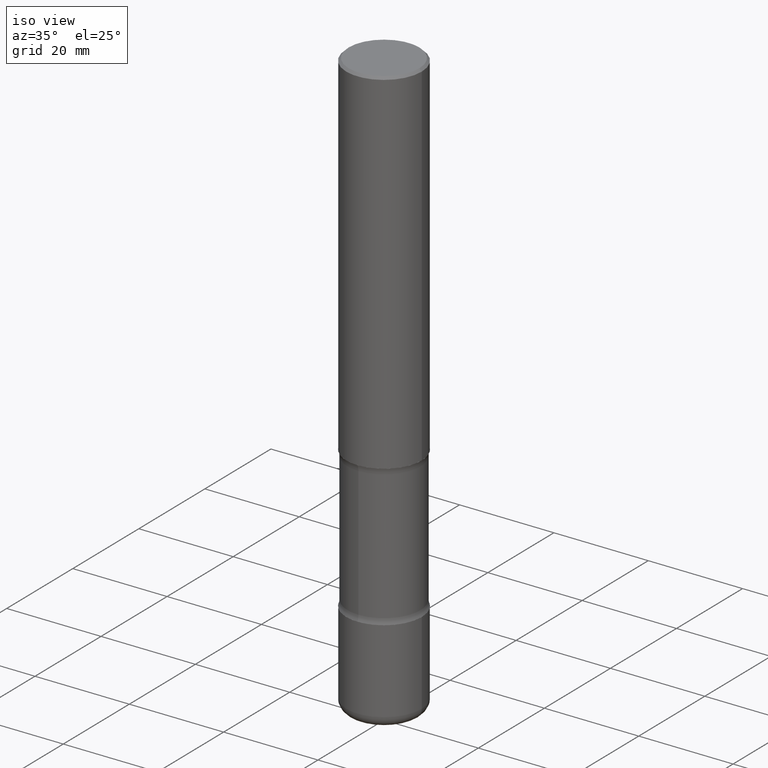
[diagram: clean part render]
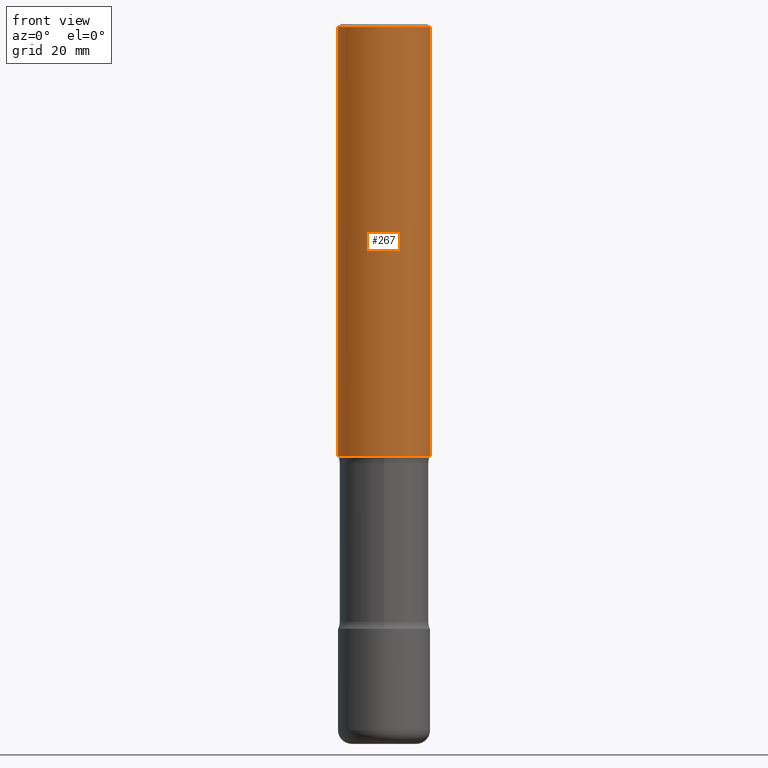
[diagram: tour spotlight — one face highlighted and labeled with its STEP entity id]
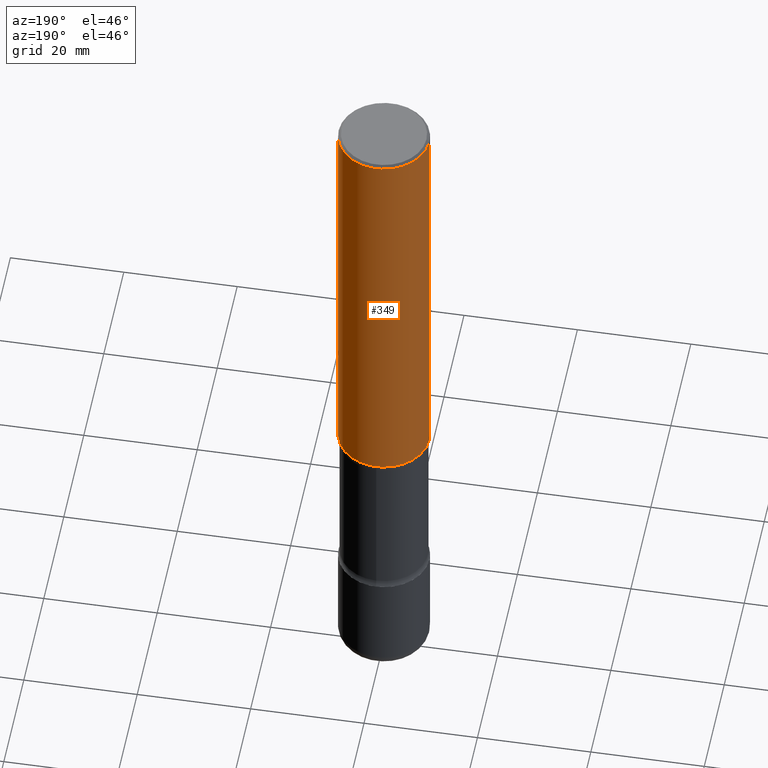
[diagram: tour spotlight — one face highlighted and labeled with its STEP entity id]
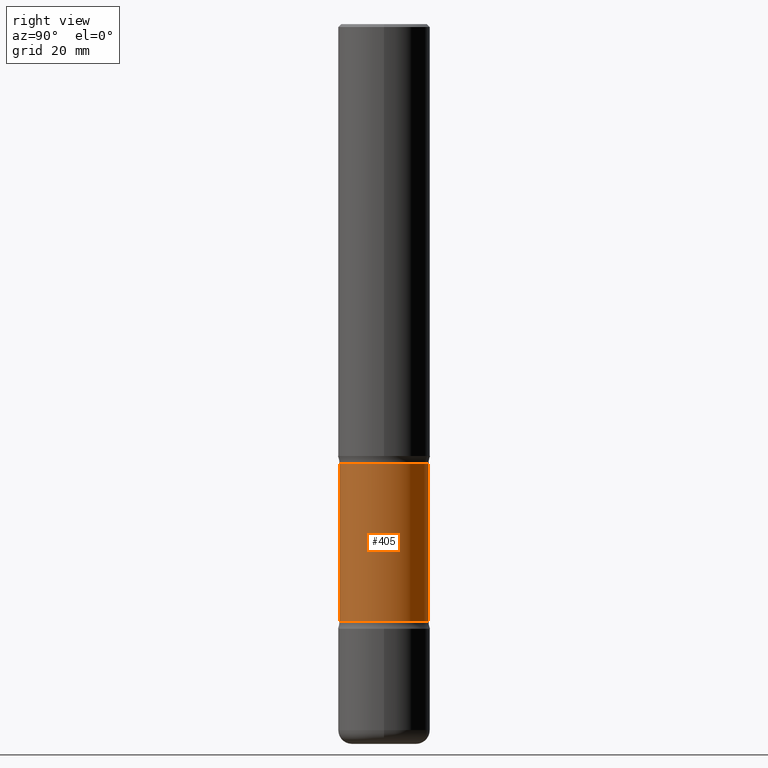
[diagram: tour spotlight — one face highlighted and labeled with its STEP entity id]
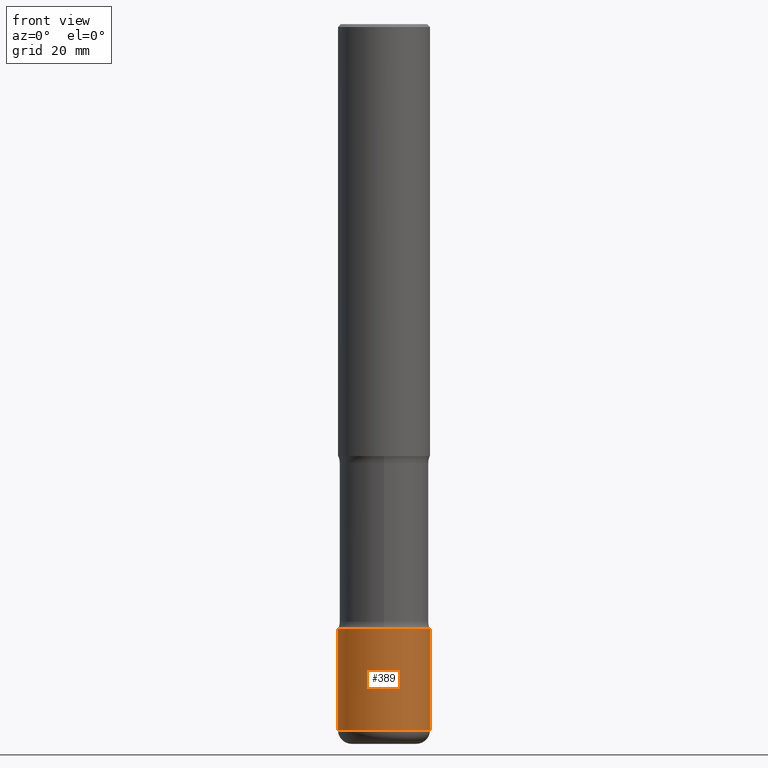
[diagram: tour spotlight — one face highlighted and labeled with its STEP entity id]
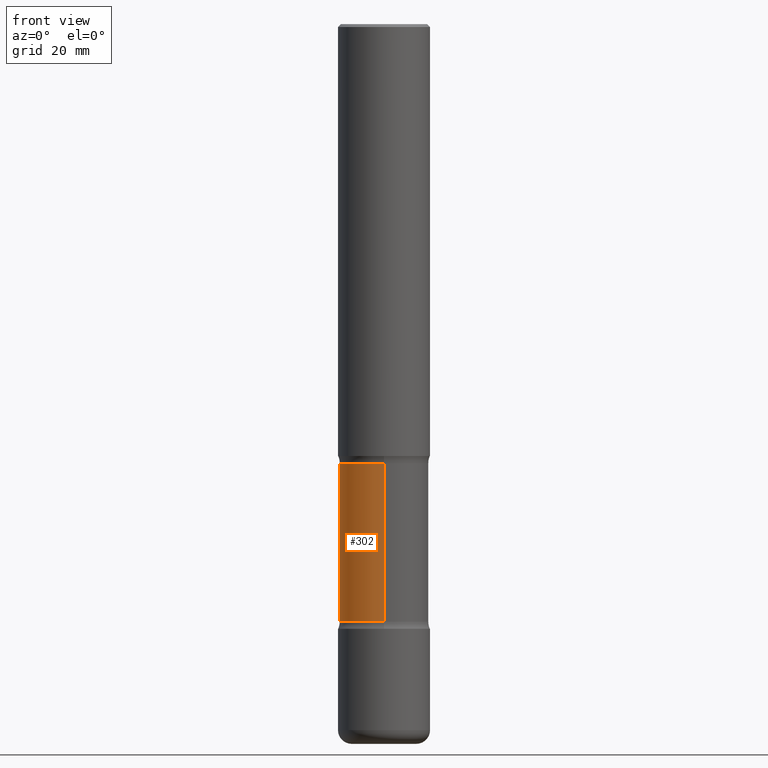
[diagram: tour spotlight — one face highlighted and labeled with its STEP entity id]
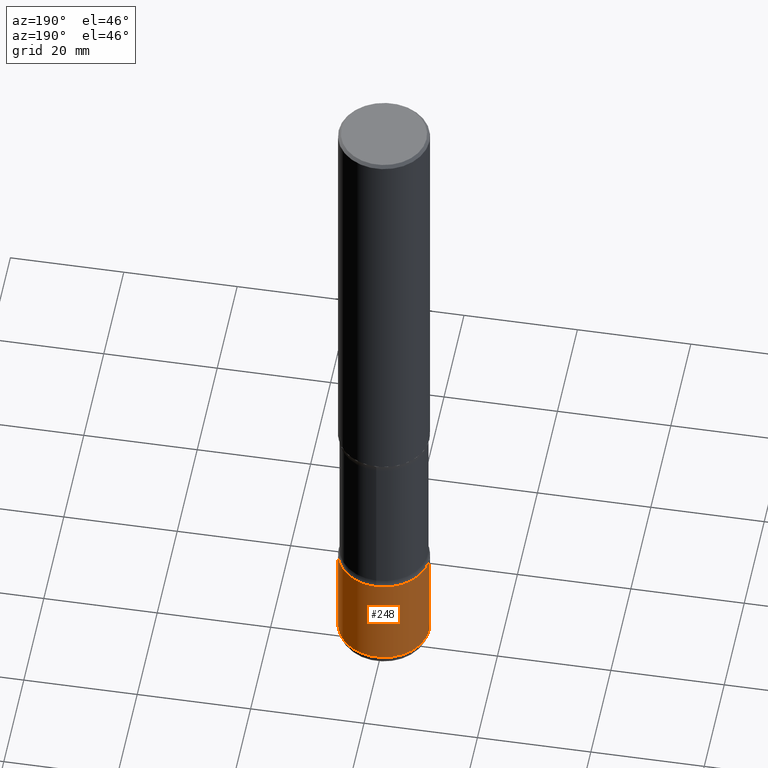
[diagram: tour spotlight — one face highlighted and labeled with its STEP entity id]
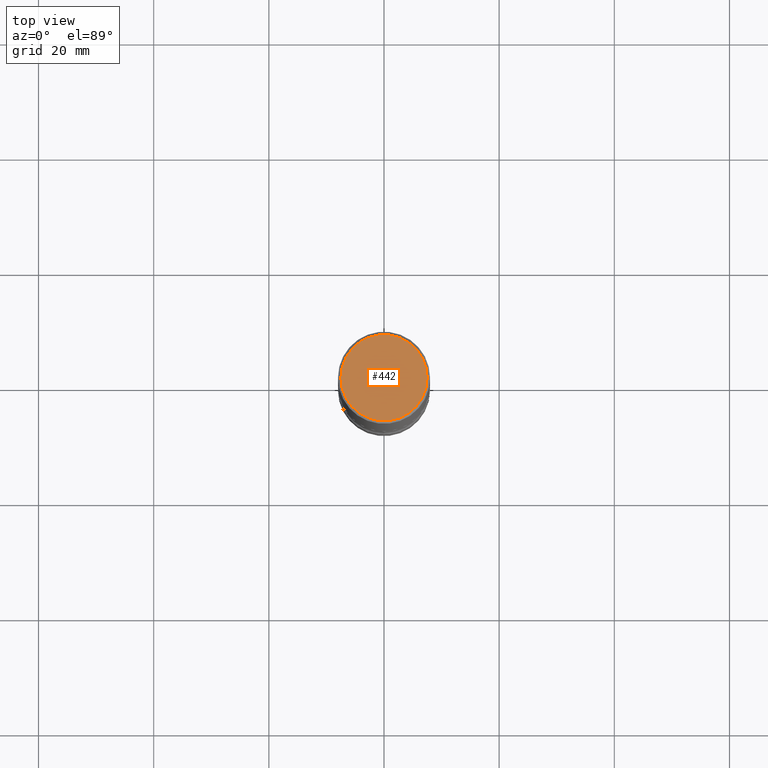
[diagram: tour spotlight — one face highlighted and labeled with its STEP entity id]
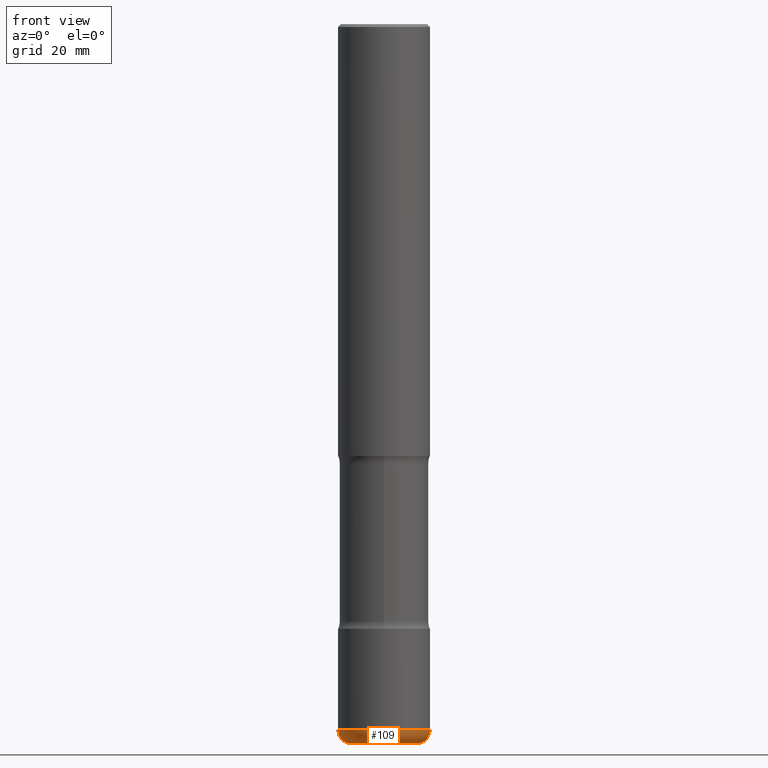
[diagram: tour spotlight — one face highlighted and labeled with its STEP entity id]
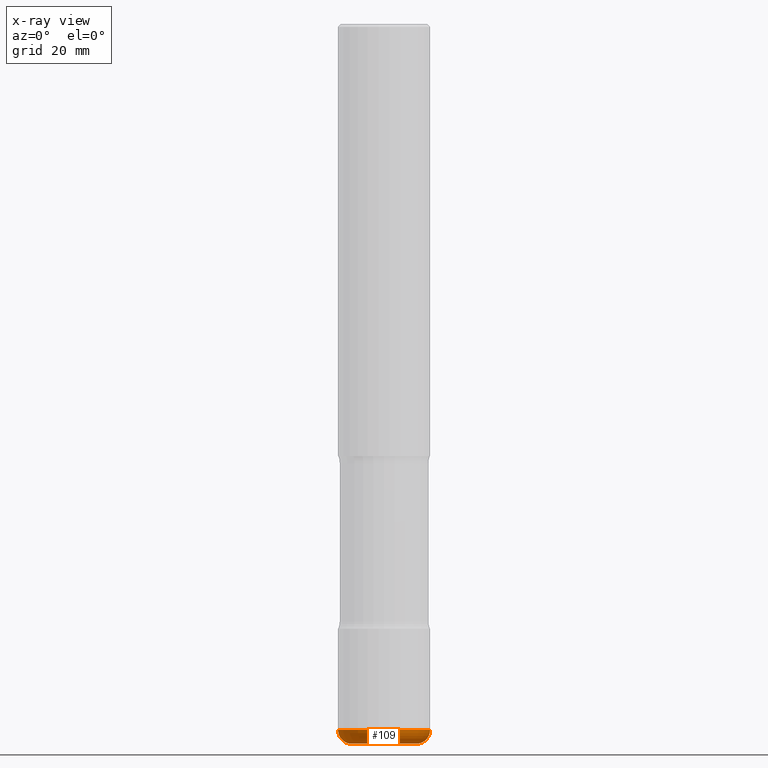
[diagram: x-ray of the same camera — body ghosted, this tour face saturated]
A machine part: a face-by-face anatomy tour. The part has 20 B-rep faces; the first image is the clean iso view, then the 8 largest visible faces are spotlighted one at a time (largest first), each with its STEP entity span.

Face 1 — front view, entity #267. In plain terms, the highlighted cylindrical surface (partial cylindrical patch) has radius 7.9997 mm, axis along (-0, 0, 1).
Definition (entity closure, byte-faithful):
#15 = FACE_OUTER_BOUND ( 'NONE', #491, .T. ) ;
#16 = ORIENTED_EDGE ( 'NONE', *, *, #226, .T. ) ;
#64 = EDGE_CURVE ( 'NONE', #408, #262, #70, .T. ) ;
#70 = LINE ( 'NONE', #508, #477 ) ;
#81 = CARTESIAN_POINT ( 'NONE',  ( 0.3149500000000002298, -1.250893019267332998E-14, -2.952799999999999869 ) ) ;
#83 = EDGE_CURVE ( 'NONE', #365, #395, #552, .T. ) ;
#101 = DIRECTION ( 'NONE',  ( 1.000000000000000000, -6.982962677686266711E-15, 4.876176775795936353E-29 ) ) ;
#116 = CARTESIAN_POINT ( 'NONE',  ( 7.220980290903470182E-29, -1.030964609733603853E-14, -2.952799999999999869 ) ) ;
#143 = CARTESIAN_POINT ( 'NONE',  ( -0.3149499999999998967, 2.129454468560425784E-15, -0.02000000000000006981 ) ) ;
#162 = CARTESIAN_POINT ( 'NONE',  ( 0.3149500000000000077, -2.199284095337289871E-15, 1.535751875536930130E-29 ) ) ;
#189 = EDGE_CURVE ( 'NONE', #262, #395, #485, .T. ) ;
#197 = ORIENTED_EDGE ( 'NONE', *, *, #64, .F. ) ;
#225 = AXIS2_PLACEMENT_3D ( 'NONE', #451, #444, #101 ) ;
#226 = EDGE_CURVE ( 'NONE', #408, #365, #393, .T. ) ;
#239 = AXIS2_PLACEMENT_3D ( 'NONE', #463, #499, #341 ) ;
#262 = VERTEX_POINT ( 'NONE', #143 ) ;
#267 = ADVANCED_FACE ( 'NONE', ( #15 ), #360, .T. ) ;
#290 = DIRECTION ( 'NONE',  ( -2.445468806185136877E-29, 3.491481338843145188E-15, 1.000000000000000000 ) ) ;
#292 = DIRECTION ( 'NONE',  ( -2.445468806185136597E-29, 3.491481338843145583E-15, 1.000000000000000000 ) ) ;
#313 = AXIS2_PLACEMENT_3D ( 'NONE', #116, #292, #333 ) ;
#320 = DIRECTION ( 'NONE',  ( -2.445468806185136877E-29, 3.491481338843145188E-15, 1.000000000000000000 ) ) ;
#333 = DIRECTION ( 'NONE',  ( 1.000000000000000000, -6.982962677686264344E-15, 0.000000000000000000 ) ) ;
#341 = DIRECTION ( 'NONE',  ( 1.000000000000000000, -6.982962677686265922E-15, 0.000000000000000000 ) ) ;
#360 = CYLINDRICAL_SURFACE ( 'NONE', #225, 0.3149500000000000077 ) ;
#365 = VERTEX_POINT ( 'NONE', #81 ) ;
#393 = CIRCLE ( 'NONE', #313, 0.3149500000000002298 ) ;
#394 = CARTESIAN_POINT ( 'NONE',  ( -0.3149500000000002298, -2.951883515780010590E-15, -2.952799999999999869 ) ) ;
#395 = VERTEX_POINT ( 'NONE', #478 ) ;
#408 = VERTEX_POINT ( 'NONE', #394 ) ;
#436 = ORIENTED_EDGE ( 'NONE', *, *, #189, .F. ) ;
#444 = DIRECTION ( 'NONE',  ( -2.445468806185136597E-29, 3.491481338843145583E-15, 1.000000000000000000 ) ) ;
#451 = CARTESIAN_POINT ( 'NONE',  ( 0.000000000000000000, 0.000000000000000000, 0.000000000000000000 ) ) ;
#463 = CARTESIAN_POINT ( 'NONE',  ( 4.890937612370289799E-31, -6.982962677686315028E-17, -0.02000000000000006981 ) ) ;
#477 = VECTOR ( 'NONE', #290, 39.37007874015748143 ) ;
#478 = CARTESIAN_POINT ( 'NONE',  ( 0.3149499999999998967, -2.230543471175006266E-15, -0.02000000000000006981 ) ) ;
#485 = CIRCLE ( 'NONE', #239, 0.3149499999999998967 ) ;
#491 = EDGE_LOOP ( 'NONE', ( #197, #16, #493, #436 ) ) ;
#493 = ORIENTED_EDGE ( 'NONE', *, *, #83, .T. ) ;
#499 = DIRECTION ( 'NONE',  ( -2.445468806185136597E-29, 3.491481338843145583E-15, 1.000000000000000000 ) ) ;
#508 = CARTESIAN_POINT ( 'NONE',  ( -0.3149500000000000077, 2.237854346276435590E-15, -1.549218606675782676E-29 ) ) ;
#545 = VECTOR ( 'NONE', #320, 39.37007874015748143 ) ;
#552 = LINE ( 'NONE', #162, #545 ) ;

Face 2 — auxiliary view, entity #349. In plain terms, the highlighted cylindrical surface (partial cylindrical patch) has radius 7.9997 mm, axis along (-0, 0, 1).
Definition (entity closure, byte-faithful):
#4 = CARTESIAN_POINT ( 'NONE',  ( 7.220980290903470182E-29, -1.030964609733603853E-14, -2.952799999999999869 ) ) ;
#33 = CYLINDRICAL_SURFACE ( 'NONE', #455, 0.3149500000000000077 ) ;
#42 = DIRECTION ( 'NONE',  ( 1.000000000000000000, -6.982962677686265922E-15, 0.000000000000000000 ) ) ;
#64 = EDGE_CURVE ( 'NONE', #408, #262, #70, .T. ) ;
#65 = ORIENTED_EDGE ( 'NONE', *, *, #64, .T. ) ;
#70 = LINE ( 'NONE', #508, #477 ) ;
#81 = CARTESIAN_POINT ( 'NONE',  ( 0.3149500000000002298, -1.250893019267332998E-14, -2.952799999999999869 ) ) ;
#83 = EDGE_CURVE ( 'NONE', #365, #395, #552, .T. ) ;
#106 = CIRCLE ( 'NONE', #476, 0.3149500000000002298 ) ;
#124 = EDGE_CURVE ( 'NONE', #395, #262, #402, .T. ) ;
#143 = CARTESIAN_POINT ( 'NONE',  ( -0.3149499999999998967, 2.129454468560425784E-15, -0.02000000000000006981 ) ) ;
#154 = DIRECTION ( 'NONE',  ( -2.445468806185136597E-29, 3.491481338843145583E-15, 1.000000000000000000 ) ) ;
#162 = CARTESIAN_POINT ( 'NONE',  ( 0.3149500000000000077, -2.199284095337289871E-15, 1.535751875536930130E-29 ) ) ;
#195 = CARTESIAN_POINT ( 'NONE',  ( 4.890937612370289799E-31, -6.982962677686315028E-17, -0.02000000000000006981 ) ) ;
#234 = ORIENTED_EDGE ( 'NONE', *, *, #83, .F. ) ;
#262 = VERTEX_POINT ( 'NONE', #143 ) ;
#290 = DIRECTION ( 'NONE',  ( -2.445468806185136877E-29, 3.491481338843145188E-15, 1.000000000000000000 ) ) ;
#295 = DIRECTION ( 'NONE',  ( -2.445468806185136597E-29, 3.491481338843145583E-15, 1.000000000000000000 ) ) ;
#303 = DIRECTION ( 'NONE',  ( -2.445468806185136597E-29, 3.491481338843145583E-15, 1.000000000000000000 ) ) ;
#320 = DIRECTION ( 'NONE',  ( -2.445468806185136877E-29, 3.491481338843145188E-15, 1.000000000000000000 ) ) ;
#325 = ORIENTED_EDGE ( 'NONE', *, *, #537, .T. ) ;
#331 = FACE_OUTER_BOUND ( 'NONE', #523, .T. ) ;
#349 = ADVANCED_FACE ( 'NONE', ( #331 ), #33, .T. ) ;
#352 = ORIENTED_EDGE ( 'NONE', *, *, #124, .F. ) ;
#365 = VERTEX_POINT ( 'NONE', #81 ) ;
#394 = CARTESIAN_POINT ( 'NONE',  ( -0.3149500000000002298, -2.951883515780010590E-15, -2.952799999999999869 ) ) ;
#395 = VERTEX_POINT ( 'NONE', #478 ) ;
#402 = CIRCLE ( 'NONE', #517, 0.3149499999999998967 ) ;
#408 = VERTEX_POINT ( 'NONE', #394 ) ;
#455 = AXIS2_PLACEMENT_3D ( 'NONE', #458, #295, #505 ) ;
#458 = CARTESIAN_POINT ( 'NONE',  ( 0.000000000000000000, 0.000000000000000000, 0.000000000000000000 ) ) ;
#473 = DIRECTION ( 'NONE',  ( 1.000000000000000000, -6.982962677686264344E-15, 0.000000000000000000 ) ) ;
#476 = AXIS2_PLACEMENT_3D ( 'NONE', #4, #303, #473 ) ;
#477 = VECTOR ( 'NONE', #290, 39.37007874015748143 ) ;
#478 = CARTESIAN_POINT ( 'NONE',  ( 0.3149499999999998967, -2.230543471175006266E-15, -0.02000000000000006981 ) ) ;
#505 = DIRECTION ( 'NONE',  ( 1.000000000000000000, -6.982962677686266711E-15, 4.876176775795936353E-29 ) ) ;
#508 = CARTESIAN_POINT ( 'NONE',  ( -0.3149500000000000077, 2.237854346276435590E-15, -1.549218606675782676E-29 ) ) ;
#517 = AXIS2_PLACEMENT_3D ( 'NONE', #195, #154, #42 ) ;
#523 = EDGE_LOOP ( 'NONE', ( #325, #65, #352, #234 ) ) ;
#537 = EDGE_CURVE ( 'NONE', #365, #408, #106, .T. ) ;
#545 = VECTOR ( 'NONE', #320, 39.37007874015748143 ) ;
#552 = LINE ( 'NONE', #162, #545 ) ;

Face 3 — right view, entity #405. In plain terms, the highlighted cylindrical surface (partial cylindrical patch) has radius 7.747 mm, axis along (0, -0, -1).
Definition (entity closure, byte-faithful):
#24 = VERTEX_POINT ( 'NONE', #459 ) ;
#49 = AXIS2_PLACEMENT_3D ( 'NONE', #364, #103, #138 ) ;
#86 = AXIS2_PLACEMENT_3D ( 'NONE', #482, #437, #559 ) ;
#88 = DIRECTION ( 'NONE',  ( 6.982962677686266711E-15, 1.000000000000000000, -3.582751467100673306E-15 ) ) ;
#103 = DIRECTION ( 'NONE',  ( 2.567425907890858451E-29, -3.316831827833398617E-15, -1.000000000000000000 ) ) ;
#126 = ORIENTED_EDGE ( 'NONE', *, *, #510, .T. ) ;
#138 = DIRECTION ( 'NONE',  ( 6.982962677686265133E-15, 1.000000000000000000, -3.582751467100671728E-15 ) ) ;
#141 = VERTEX_POINT ( 'NONE', #252 ) ;
#157 = CARTESIAN_POINT ( 'NONE',  ( -2.092451889320195532E-15, -0.3050000000000170908, -4.921299999999997787 ) ) ;
#179 = ORIENTED_EDGE ( 'NONE', *, *, #286, .T. ) ;
#182 = EDGE_CURVE ( 'NONE', #450, #141, #420, .T. ) ;
#210 = DIRECTION ( 'NONE',  ( 2.567425907890858451E-29, -3.316831827833398617E-15, -1.000000000000000000 ) ) ;
#217 = DIRECTION ( 'NONE',  ( 2.567425907890858451E-29, -3.316831827833398617E-15, -1.000000000000000000 ) ) ;
#224 = CARTESIAN_POINT ( 'NONE',  ( -2.126582866859160770E-15, -0.3050000000000108180, -3.001672256956272378 ) ) ;
#252 = CARTESIAN_POINT ( 'NONE',  ( 2.129803616694410664E-15, 0.3049999999999857270, -4.085027743043728066 ) ) ;
#261 = CARTESIAN_POINT ( 'NONE',  ( 9.983847599202101310E-29, -1.427133364927305841E-14, -4.085027743043726289 ) ) ;
#286 = EDGE_CURVE ( 'NONE', #450, #406, #526, .T. ) ;
#299 = DIRECTION ( 'NONE',  ( 2.567425907890858451E-29, -3.316831827833398617E-15, -1.000000000000000000 ) ) ;
#310 = CYLINDRICAL_SURFACE ( 'NONE', #86, 0.3050000000000000488 ) ;
#312 = CIRCLE ( 'NONE', #534, 0.3049999999999999933 ) ;
#323 = EDGE_LOOP ( 'NONE', ( #179, #126, #342, #350 ) ) ;
#338 = CARTESIAN_POINT ( 'NONE',  ( 2.129803616694383843E-15, 0.3049999999999893907, -3.001672256956274598 ) ) ;
#342 = ORIENTED_EDGE ( 'NONE', *, *, #424, .F. ) ;
#350 = ORIENTED_EDGE ( 'NONE', *, *, #182, .F. ) ;
#364 = CARTESIAN_POINT ( 'NONE',  ( 7.202412656765479231E-29, -1.067802569216027239E-14, -3.001672256956273710 ) ) ;
#388 = FACE_OUTER_BOUND ( 'NONE', #323, .T. ) ;
#405 = ADVANCED_FACE ( 'NONE', ( #388 ), #310, .T. ) ;
#406 = VERTEX_POINT ( 'NONE', #224 ) ;
#411 = VECTOR ( 'NONE', #299, 39.37007874015748143 ) ;
#420 = LINE ( 'NONE', #426, #503 ) ;
#424 = EDGE_CURVE ( 'NONE', #141, #24, #312, .T. ) ;
#426 = CARTESIAN_POINT ( 'NONE',  ( 2.129803616694432752E-15, 0.3049999999999830069, -4.921299999999999564 ) ) ;
#437 = DIRECTION ( 'NONE',  ( 2.567425907890858451E-29, -3.316831827833398617E-15, -1.000000000000000000 ) ) ;
#450 = VERTEX_POINT ( 'NONE', #338 ) ;
#459 = CARTESIAN_POINT ( 'NONE',  ( -2.126582866859130004E-15, -0.3050000000000142597, -4.085027743043725401 ) ) ;
#482 = CARTESIAN_POINT ( 'NONE',  ( 1.213091465776199422E-28, -1.704510808787969270E-14, -4.921299999999998676 ) ) ;
#503 = VECTOR ( 'NONE', #210, 39.37007874015748143 ) ;
#510 = EDGE_CURVE ( 'NONE', #406, #24, #547, .T. ) ;
#526 = CIRCLE ( 'NONE', #49, 0.3050000000000001044 ) ;
#534 = AXIS2_PLACEMENT_3D ( 'NONE', #261, #217, #88 ) ;
#547 = LINE ( 'NONE', #157, #411 ) ;
#559 = DIRECTION ( 'NONE',  ( 6.982962677686265133E-15, 1.000000000000000000, -3.582751467100672517E-15 ) ) ;

Face 4 — front view, entity #389. In plain terms, the highlighted cylindrical surface (partial cylindrical patch) has radius 7.9997 mm, axis along (-0, 0, 1).
Definition (entity closure, byte-faithful):
#5 = EDGE_CURVE ( 'NONE', #423, #129, #125, .T. ) ;
#17 = VERTEX_POINT ( 'NONE', #243 ) ;
#43 = LINE ( 'NONE', #220, #291 ) ;
#48 = ORIENTED_EDGE ( 'NONE', *, *, #466, .T. ) ;
#50 = DIRECTION ( 'NONE',  ( -2.445468806185136597E-29, 3.491481338843145583E-15, 1.000000000000000000 ) ) ;
#58 = ORIENTED_EDGE ( 'NONE', *, *, #492, .T. ) ;
#77 = CARTESIAN_POINT ( 'NONE',  ( 0.3149500000000001743, -1.663271880198097216E-14, -4.133899999999999686 ) ) ;
#85 = CARTESIAN_POINT ( 'NONE',  ( 0.3149500000000001743, -1.905196622166539041E-14, -4.826800000000001312 ) ) ;
#98 = ORIENTED_EDGE ( 'NONE', *, *, #5, .F. ) ;
#110 = AXIS2_PLACEMENT_3D ( 'NONE', #167, #464, #422 ) ;
#117 = CIRCLE ( 'NONE', #428, 0.3149500000000001743 ) ;
#125 = CIRCLE ( 'NONE', #110, 0.3149500000000001743 ) ;
#127 = DIRECTION ( 'NONE',  ( -2.445468806185136877E-29, 3.491481338843145188E-15, 1.000000000000000000 ) ) ;
#128 = CARTESIAN_POINT ( 'NONE',  ( -0.3149500000000001743, -1.340520407020945227E-14, -4.133899999999999686 ) ) ;
#129 = VERTEX_POINT ( 'NONE', #77 ) ;
#132 = VECTOR ( 'NONE', #127, 39.37007874015748143 ) ;
#167 = CARTESIAN_POINT ( 'NONE',  ( 1.010932349788873450E-28, -1.443343470664368071E-14, -4.133899999999999686 ) ) ;
#220 = CARTESIAN_POINT ( 'NONE',  ( 0.3149500000000001743, -2.199284095337290660E-15, 1.535751875536930690E-29 ) ) ;
#243 = CARTESIAN_POINT ( 'NONE',  ( -0.3149500000000001743, -1.461482778005166298E-14, -4.826800000000001312 ) ) ;
#255 = FACE_OUTER_BOUND ( 'NONE', #400, .T. ) ;
#291 = VECTOR ( 'NONE', #427, 39.37007874015748143 ) ;
#298 = ORIENTED_EDGE ( 'NONE', *, *, #373, .F. ) ;
#307 = DIRECTION ( 'NONE',  ( 1.000000000000000000, -6.982962677686265922E-15, 0.000000000000000000 ) ) ;
#348 = CARTESIAN_POINT ( 'NONE',  ( 0.000000000000000000, 0.000000000000000000, 0.000000000000000000 ) ) ;
#373 = EDGE_CURVE ( 'NONE', #17, #423, #381, .T. ) ;
#381 = LINE ( 'NONE', #386, #132 ) ;
#384 = AXIS2_PLACEMENT_3D ( 'NONE', #348, #50, #431 ) ;
#386 = CARTESIAN_POINT ( 'NONE',  ( -0.3149500000000001743, 2.237854346276436774E-15, -1.549218606675783237E-29 ) ) ;
#387 = DIRECTION ( 'NONE',  ( -2.445468806185136597E-29, 3.491481338843145583E-15, 1.000000000000000000 ) ) ;
#389 = ADVANCED_FACE ( 'NONE', ( #255 ), #425, .T. ) ;
#400 = EDGE_LOOP ( 'NONE', ( #298, #58, #48, #98 ) ) ;
#422 = DIRECTION ( 'NONE',  ( 1.000000000000000000, -6.982962677686265922E-15, 0.000000000000000000 ) ) ;
#423 = VERTEX_POINT ( 'NONE', #128 ) ;
#425 = CYLINDRICAL_SURFACE ( 'NONE', #384, 0.3149500000000001743 ) ;
#427 = DIRECTION ( 'NONE',  ( -2.445468806185136877E-29, 3.491481338843145188E-15, 1.000000000000000000 ) ) ;
#428 = AXIS2_PLACEMENT_3D ( 'NONE', #429, #387, #307 ) ;
#429 = CARTESIAN_POINT ( 'NONE',  ( 1.180378883369442130E-28, -1.685268212632809896E-14, -4.826800000000001312 ) ) ;
#431 = DIRECTION ( 'NONE',  ( 1.000000000000000000, -6.982962677686265922E-15, 4.876176775795935232E-29 ) ) ;
#464 = DIRECTION ( 'NONE',  ( -2.445468806185136597E-29, 3.491481338843145583E-15, 1.000000000000000000 ) ) ;
#466 = EDGE_CURVE ( 'NONE', #556, #129, #43, .T. ) ;
#492 = EDGE_CURVE ( 'NONE', #17, #556, #117, .T. ) ;
#556 = VERTEX_POINT ( 'NONE', #85 ) ;

Face 5 — front view, entity #302. In plain terms, the highlighted cylindrical surface (partial cylindrical patch) has radius 7.747 mm, axis along (0, -0, -1).
Definition (entity closure, byte-faithful):
#21 = CARTESIAN_POINT ( 'NONE',  ( 1.213091465776199422E-28, -1.704510808787969270E-14, -4.921299999999998676 ) ) ;
#24 = VERTEX_POINT ( 'NONE', #459 ) ;
#31 = CARTESIAN_POINT ( 'NONE',  ( 7.202412656765479231E-29, -1.067802569216027239E-14, -3.001672256956273710 ) ) ;
#92 = ORIENTED_EDGE ( 'NONE', *, *, #510, .F. ) ;
#94 = EDGE_CURVE ( 'NONE', #406, #450, #368, .T. ) ;
#119 = AXIS2_PLACEMENT_3D ( 'NONE', #31, #250, #246 ) ;
#137 = AXIS2_PLACEMENT_3D ( 'NONE', #235, #419, #507 ) ;
#141 = VERTEX_POINT ( 'NONE', #252 ) ;
#157 = CARTESIAN_POINT ( 'NONE',  ( -2.092451889320195532E-15, -0.3050000000000170908, -4.921299999999997787 ) ) ;
#165 = CIRCLE ( 'NONE', #137, 0.3049999999999999933 ) ;
#182 = EDGE_CURVE ( 'NONE', #450, #141, #420, .T. ) ;
#194 = CYLINDRICAL_SURFACE ( 'NONE', #409, 0.3050000000000000488 ) ;
#210 = DIRECTION ( 'NONE',  ( 2.567425907890858451E-29, -3.316831827833398617E-15, -1.000000000000000000 ) ) ;
#224 = CARTESIAN_POINT ( 'NONE',  ( -2.126582866859160770E-15, -0.3050000000000108180, -3.001672256956272378 ) ) ;
#235 = CARTESIAN_POINT ( 'NONE',  ( 9.983847599202101310E-29, -1.427133364927305841E-14, -4.085027743043726289 ) ) ;
#245 = DIRECTION ( 'NONE',  ( 6.982962677686265133E-15, 1.000000000000000000, -3.582751467100672517E-15 ) ) ;
#246 = DIRECTION ( 'NONE',  ( 6.982962677686265133E-15, 1.000000000000000000, -3.582751467100671728E-15 ) ) ;
#250 = DIRECTION ( 'NONE',  ( 2.567425907890858451E-29, -3.316831827833398617E-15, -1.000000000000000000 ) ) ;
#252 = CARTESIAN_POINT ( 'NONE',  ( 2.129803616694410664E-15, 0.3049999999999857270, -4.085027743043728066 ) ) ;
#279 = EDGE_LOOP ( 'NONE', ( #92, #334, #371, #533 ) ) ;
#296 = EDGE_CURVE ( 'NONE', #24, #141, #165, .T. ) ;
#299 = DIRECTION ( 'NONE',  ( 2.567425907890858451E-29, -3.316831827833398617E-15, -1.000000000000000000 ) ) ;
#302 = ADVANCED_FACE ( 'NONE', ( #412 ), #194, .T. ) ;
#334 = ORIENTED_EDGE ( 'NONE', *, *, #94, .T. ) ;
#338 = CARTESIAN_POINT ( 'NONE',  ( 2.129803616694383843E-15, 0.3049999999999893907, -3.001672256956274598 ) ) ;
#368 = CIRCLE ( 'NONE', #119, 0.3050000000000001044 ) ;
#371 = ORIENTED_EDGE ( 'NONE', *, *, #182, .T. ) ;
#406 = VERTEX_POINT ( 'NONE', #224 ) ;
#409 = AXIS2_PLACEMENT_3D ( 'NONE', #21, #550, #245 ) ;
#411 = VECTOR ( 'NONE', #299, 39.37007874015748143 ) ;
#412 = FACE_OUTER_BOUND ( 'NONE', #279, .T. ) ;
#419 = DIRECTION ( 'NONE',  ( 2.567425907890858451E-29, -3.316831827833398617E-15, -1.000000000000000000 ) ) ;
#420 = LINE ( 'NONE', #426, #503 ) ;
#426 = CARTESIAN_POINT ( 'NONE',  ( 2.129803616694432752E-15, 0.3049999999999830069, -4.921299999999999564 ) ) ;
#450 = VERTEX_POINT ( 'NONE', #338 ) ;
#459 = CARTESIAN_POINT ( 'NONE',  ( -2.126582866859130004E-15, -0.3050000000000142597, -4.085027743043725401 ) ) ;
#503 = VECTOR ( 'NONE', #210, 39.37007874015748143 ) ;
#507 = DIRECTION ( 'NONE',  ( 6.982962677686266711E-15, 1.000000000000000000, -3.582751467100673306E-15 ) ) ;
#510 = EDGE_CURVE ( 'NONE', #406, #24, #547, .T. ) ;
#533 = ORIENTED_EDGE ( 'NONE', *, *, #296, .F. ) ;
#547 = LINE ( 'NONE', #157, #411 ) ;
#550 = DIRECTION ( 'NONE',  ( 2.567425907890858451E-29, -3.316831827833398617E-15, -1.000000000000000000 ) ) ;

Face 6 — auxiliary view, entity #248. In plain terms, the highlighted cylindrical surface (partial cylindrical patch) has radius 7.9997 mm, axis along (-0, 0, 1).
Definition (entity closure, byte-faithful):
#17 = VERTEX_POINT ( 'NONE', #243 ) ;
#43 = LINE ( 'NONE', #220, #291 ) ;
#66 = AXIS2_PLACEMENT_3D ( 'NONE', #97, #448, #318 ) ;
#77 = CARTESIAN_POINT ( 'NONE',  ( 0.3149500000000001743, -1.663271880198097216E-14, -4.133899999999999686 ) ) ;
#85 = CARTESIAN_POINT ( 'NONE',  ( 0.3149500000000001743, -1.905196622166539041E-14, -4.826800000000001312 ) ) ;
#97 = CARTESIAN_POINT ( 'NONE',  ( 0.000000000000000000, 0.000000000000000000, 0.000000000000000000 ) ) ;
#102 = ORIENTED_EDGE ( 'NONE', *, *, #373, .T. ) ;
#127 = DIRECTION ( 'NONE',  ( -2.445468806185136877E-29, 3.491481338843145188E-15, 1.000000000000000000 ) ) ;
#128 = CARTESIAN_POINT ( 'NONE',  ( -0.3149500000000001743, -1.340520407020945227E-14, -4.133899999999999686 ) ) ;
#129 = VERTEX_POINT ( 'NONE', #77 ) ;
#132 = VECTOR ( 'NONE', #127, 39.37007874015748143 ) ;
#175 = ORIENTED_EDGE ( 'NONE', *, *, #527, .F. ) ;
#196 = FACE_OUTER_BOUND ( 'NONE', #529, .T. ) ;
#220 = CARTESIAN_POINT ( 'NONE',  ( 0.3149500000000001743, -2.199284095337290660E-15, 1.535751875536930690E-29 ) ) ;
#222 = CIRCLE ( 'NONE', #382, 0.3149500000000001743 ) ;
#243 = CARTESIAN_POINT ( 'NONE',  ( -0.3149500000000001743, -1.461482778005166298E-14, -4.826800000000001312 ) ) ;
#248 = ADVANCED_FACE ( 'NONE', ( #196 ), #398, .T. ) ;
#291 = VECTOR ( 'NONE', #427, 39.37007874015748143 ) ;
#297 = DIRECTION ( 'NONE',  ( 1.000000000000000000, -6.982962677686265922E-15, 0.000000000000000000 ) ) ;
#318 = DIRECTION ( 'NONE',  ( 1.000000000000000000, -6.982962677686265922E-15, 4.876176775795935232E-29 ) ) ;
#343 = AXIS2_PLACEMENT_3D ( 'NONE', #515, #391, #557 ) ;
#359 = ORIENTED_EDGE ( 'NONE', *, *, #466, .F. ) ;
#373 = EDGE_CURVE ( 'NONE', #17, #423, #381, .T. ) ;
#378 = CARTESIAN_POINT ( 'NONE',  ( 1.180378883369442130E-28, -1.685268212632809896E-14, -4.826800000000001312 ) ) ;
#381 = LINE ( 'NONE', #386, #132 ) ;
#382 = AXIS2_PLACEMENT_3D ( 'NONE', #378, #509, #297 ) ;
#386 = CARTESIAN_POINT ( 'NONE',  ( -0.3149500000000001743, 2.237854346276436774E-15, -1.549218606675783237E-29 ) ) ;
#391 = DIRECTION ( 'NONE',  ( -2.445468806185136597E-29, 3.491481338843145583E-15, 1.000000000000000000 ) ) ;
#398 = CYLINDRICAL_SURFACE ( 'NONE', #66, 0.3149500000000001743 ) ;
#423 = VERTEX_POINT ( 'NONE', #128 ) ;
#427 = DIRECTION ( 'NONE',  ( -2.445468806185136877E-29, 3.491481338843145188E-15, 1.000000000000000000 ) ) ;
#445 = ORIENTED_EDGE ( 'NONE', *, *, #454, .T. ) ;
#448 = DIRECTION ( 'NONE',  ( -2.445468806185136597E-29, 3.491481338843145583E-15, 1.000000000000000000 ) ) ;
#454 = EDGE_CURVE ( 'NONE', #556, #17, #222, .T. ) ;
#466 = EDGE_CURVE ( 'NONE', #556, #129, #43, .T. ) ;
#509 = DIRECTION ( 'NONE',  ( -2.445468806185136597E-29, 3.491481338843145583E-15, 1.000000000000000000 ) ) ;
#512 = CIRCLE ( 'NONE', #343, 0.3149500000000001743 ) ;
#515 = CARTESIAN_POINT ( 'NONE',  ( 1.010932349788873450E-28, -1.443343470664368071E-14, -4.133899999999999686 ) ) ;
#527 = EDGE_CURVE ( 'NONE', #129, #423, #512, .T. ) ;
#529 = EDGE_LOOP ( 'NONE', ( #445, #102, #175, #359 ) ) ;
#556 = VERTEX_POINT ( 'NONE', #85 ) ;
#557 = DIRECTION ( 'NONE',  ( 1.000000000000000000, -6.982962677686265922E-15, 0.000000000000000000 ) ) ;

Face 7 — top view, entity #442. In plain terms, the highlighted planar face has unit normal (0, -0, -1).
Definition (entity closure, byte-faithful):
#1 = VERTEX_POINT ( 'NONE', #471 ) ;
#22 = CARTESIAN_POINT ( 'NONE',  ( -1.043851414335219820E-46, 1.490343170380447200E-32, 4.268512490100411279E-18 ) ) ;
#35 = CARTESIAN_POINT ( 'NONE',  ( 2.059624841783562880E-15, 0.2949499999999998234, -1.027678164646734974E-15 ) ) ;
#100 = EDGE_CURVE ( 'NONE', #1, #486, #322, .T. ) ;
#146 = DIRECTION ( 'NONE',  ( 1.000000000000000000, -6.982962677686267499E-15, 4.876053491004737710E-29 ) ) ;
#204 = PLANE ( 'NONE',  #441 ) ;
#260 = DIRECTION ( 'NONE',  ( 2.438088387897960049E-29, -3.491481338843145188E-15, -1.000000000000000000 ) ) ;
#304 = CARTESIAN_POINT ( 'NONE',  ( -0.2949499999999998234, 2.094539655171994135E-15, 4.268512490085885145E-18 ) ) ;
#305 = AXIS2_PLACEMENT_3D ( 'NONE', #560, #516, #551 ) ;
#308 = EDGE_LOOP ( 'NONE', ( #355, #370 ) ) ;
#322 = CIRCLE ( 'NONE', #511, 0.2949499999999998234 ) ;
#355 = ORIENTED_EDGE ( 'NONE', *, *, #483, .T. ) ;
#367 = CIRCLE ( 'NONE', #305, 0.2949499999999998234 ) ;
#370 = ORIENTED_EDGE ( 'NONE', *, *, #100, .T. ) ;
#441 = AXIS2_PLACEMENT_3D ( 'NONE', #35, #260, #514 ) ;
#442 = ADVANCED_FACE ( 'NONE', ( #469 ), #204, .F. ) ;
#469 = FACE_OUTER_BOUND ( 'NONE', #308, .T. ) ;
#471 = CARTESIAN_POINT ( 'NONE',  ( 0.2949499999999998234, -2.127023677808859286E-15, 4.268512490115050658E-18 ) ) ;
#483 = EDGE_CURVE ( 'NONE', #486, #1, #367, .T. ) ;
#486 = VERTEX_POINT ( 'NONE', #304 ) ;
#511 = AXIS2_PLACEMENT_3D ( 'NONE', #22, #531, #146 ) ;
#514 = DIRECTION ( 'NONE',  ( -1.000000000000000000, 6.982962677686265922E-15, -4.876176775795935793E-29 ) ) ;
#516 = DIRECTION ( 'NONE',  ( -2.445468806185136597E-29, 3.491481338843145583E-15, 1.000000000000000000 ) ) ;
#531 = DIRECTION ( 'NONE',  ( -2.445468806185136597E-29, 3.491481338843145583E-15, 1.000000000000000000 ) ) ;
#551 = DIRECTION ( 'NONE',  ( 1.000000000000000000, -6.982962677686267499E-15, 4.876053491004737710E-29 ) ) ;
#560 = CARTESIAN_POINT ( 'NONE',  ( -1.043851414335219820E-46, 1.490343170380447200E-32, 4.268512490100411279E-18 ) ) ;

Face 8 — front view, entity #109. An x-ray twin of the same camera follows (body ghosted, this face saturated) — the face is partly hidden behind the body. In plain terms, the highlighted toroidal blend (fillet) surface has major radius 5.5994 mm and minor (blend) radius 2.4003 mm.
Definition (entity closure, byte-faithful):
#8 = CARTESIAN_POINT ( 'NONE',  ( -0.2204500000000002846, -1.528629066534495470E-14, -4.826800000000001312 ) ) ;
#17 = VERTEX_POINT ( 'NONE', #243 ) ;
#18 = EDGE_CURVE ( 'NONE', #229, #518, #467, .T. ) ;
#30 = DIRECTION ( 'NONE',  ( 1.000000000000000000, -6.982962677686268288E-15, 4.883557194083114022E-29 ) ) ;
#37 = CARTESIAN_POINT ( 'NONE',  ( 0.2204500000000002846, -1.872202123514471598E-14, -4.921300000000000452 ) ) ;
#62 = CIRCLE ( 'NONE', #356, 0.09449999999999980638 ) ;
#85 = CARTESIAN_POINT ( 'NONE',  ( 0.3149500000000001743, -1.905196622166539041E-14, -4.826800000000001312 ) ) ;
#93 = TOROIDAL_SURFACE ( 'NONE', #164, 0.2204500000000002846, 0.09449999999999982025 ) ;
#96 = ORIENTED_EDGE ( 'NONE', *, *, #492, .F. ) ;
#109 = ADVANCED_FACE ( 'NONE', ( #282 ), #93, .T. ) ;
#112 = DIRECTION ( 'NONE',  ( -2.445468806185136597E-29, 3.491481338843145583E-15, 1.000000000000000000 ) ) ;
#117 = CIRCLE ( 'NONE', #428, 0.3149500000000001743 ) ;
#121 = DIRECTION ( 'NONE',  ( -6.982962677686266711E-15, -1.000000000000000000, 3.491481338843145583E-15 ) ) ;
#123 = DIRECTION ( 'NONE',  ( 1.000000000000000000, -6.982962677686260400E-15, 0.000000000000000000 ) ) ;
#133 = CIRCLE ( 'NONE', #457, 0.09449999999999980638 ) ;
#134 = ORIENTED_EDGE ( 'NONE', *, *, #447, .T. ) ;
#164 = AXIS2_PLACEMENT_3D ( 'NONE', #506, #112, #30 ) ;
#201 = CARTESIAN_POINT ( 'NONE',  ( 1.203488563587891594E-28, -1.718262711284877655E-14, -4.921300000000000452 ) ) ;
#211 = CARTESIAN_POINT ( 'NONE',  ( 0.2204500000000002846, -1.839207624862403839E-14, -4.826800000000001312 ) ) ;
#229 = VERTEX_POINT ( 'NONE', #327 ) ;
#243 = CARTESIAN_POINT ( 'NONE',  ( -0.3149500000000001743, -1.461482778005166298E-14, -4.826800000000001312 ) ) ;
#256 = EDGE_CURVE ( 'NONE', #229, #17, #133, .T. ) ;
#273 = ORIENTED_EDGE ( 'NONE', *, *, #18, .T. ) ;
#282 = FACE_OUTER_BOUND ( 'NONE', #319, .T. ) ;
#307 = DIRECTION ( 'NONE',  ( 1.000000000000000000, -6.982962677686265922E-15, 0.000000000000000000 ) ) ;
#319 = EDGE_LOOP ( 'NONE', ( #392, #273, #134, #96 ) ) ;
#327 = CARTESIAN_POINT ( 'NONE',  ( -0.2204500000000002846, -1.511553171595864605E-14, -4.921300000000000452 ) ) ;
#351 = AXIS2_PLACEMENT_3D ( 'NONE', #201, #379, #416 ) ;
#356 = AXIS2_PLACEMENT_3D ( 'NONE', #211, #121, #123 ) ;
#379 = DIRECTION ( 'NONE',  ( -2.445468806185136597E-29, 3.491481338843145583E-15, 1.000000000000000000 ) ) ;
#387 = DIRECTION ( 'NONE',  ( -2.445468806185136597E-29, 3.491481338843145583E-15, 1.000000000000000000 ) ) ;
#392 = ORIENTED_EDGE ( 'NONE', *, *, #256, .F. ) ;
#416 = DIRECTION ( 'NONE',  ( 1.000000000000000000, -6.982962677686272233E-15, 0.000000000000000000 ) ) ;
#428 = AXIS2_PLACEMENT_3D ( 'NONE', #429, #387, #307 ) ;
#429 = CARTESIAN_POINT ( 'NONE',  ( 1.180378883369442130E-28, -1.685268212632809896E-14, -4.826800000000001312 ) ) ;
#447 = EDGE_CURVE ( 'NONE', #518, #556, #62, .T. ) ;
#457 = AXIS2_PLACEMENT_3D ( 'NONE', #8, #530, #490 ) ;
#467 = CIRCLE ( 'NONE', #351, 0.2204500000000002846 ) ;
#490 = DIRECTION ( 'NONE',  ( -1.000000000000000000, 7.105427357600998703E-15, 0.000000000000000000 ) ) ;
#492 = EDGE_CURVE ( 'NONE', #17, #556, #117, .T. ) ;
#506 = CARTESIAN_POINT ( 'NONE',  ( 1.180378883369442130E-28, -1.685268212632809896E-14, -4.826800000000001312 ) ) ;
#518 = VERTEX_POINT ( 'NONE', #37 ) ;
#530 = DIRECTION ( 'NONE',  ( 7.105427357601001859E-15, 1.000000000000000000, -3.491481338843145583E-15 ) ) ;
#556 = VERTEX_POINT ( 'NONE', #85 ) ;